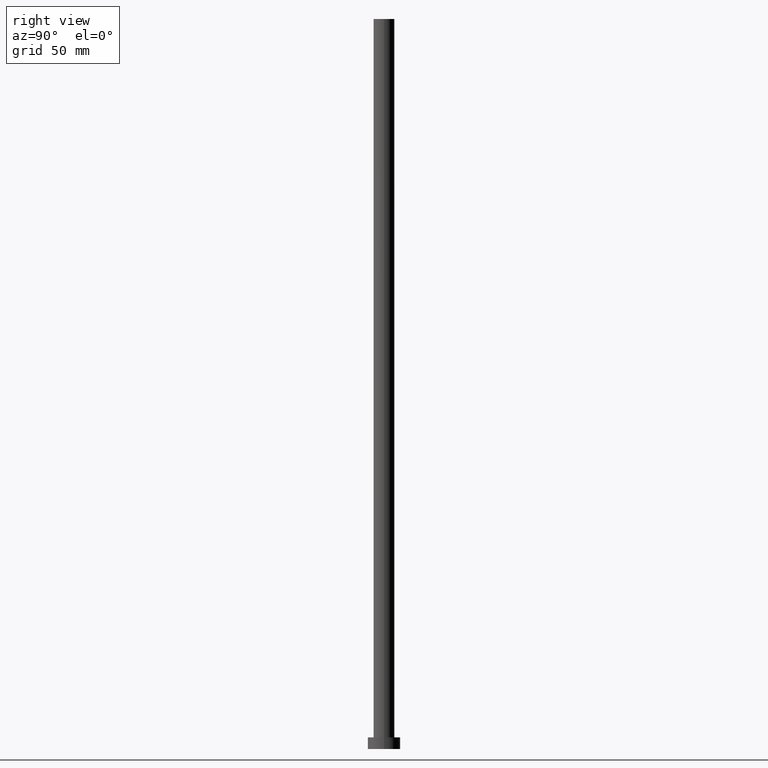
[diagram: clean part render]
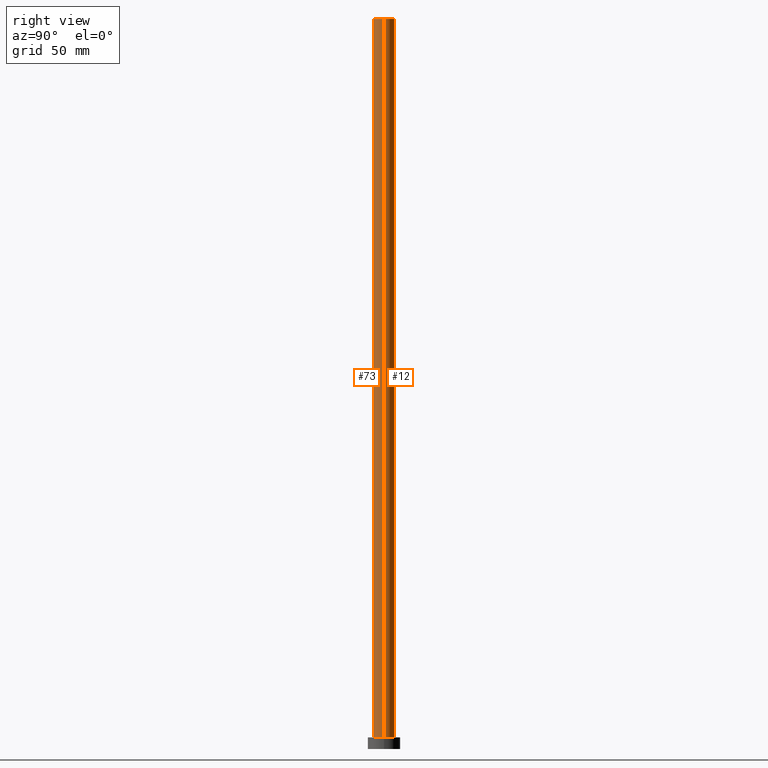
[diagram: same view with one multi-face feature highlighted, each face labeled with its STEP entity id]
A machine part, right view. The highlighted faces form ONE feature: a constant-radius fillet chain: 2 tangent blend faces with common blend radius 4.5 mm. The faces share edges in the B-rep.
Their STEP definitions:
[1] entity #12 (Cylinder):
#4 = VECTOR ( 'NONE', #164, 1000.000000000000000 ) ;
#12 = ADVANCED_FACE ( 'NONE', ( #252 ), #92, .T. ) ;
#13 = LINE ( 'NONE', #184, #204 ) ;
#14 = DIRECTION ( 'NONE',  ( -1.000000000000000000, 0.000000000000000000, 0.000000000000000000 ) ) ;
#18 = CARTESIAN_POINT ( 'NONE',  ( -4.500000000000000000, 0.000000000000000000, 5.000000000000000000 ) ) ;
#20 = ORIENTED_EDGE ( 'NONE', *, *, #53, .T. ) ;
#25 = ORIENTED_EDGE ( 'NONE', *, *, #79, .F. ) ;
#29 = EDGE_CURVE ( 'NONE', #216, #67, #105, .T. ) ;
#32 = CARTESIAN_POINT ( 'NONE',  ( -4.500000000000000000, 0.000000000000000000, 315.0000000000000000 ) ) ;
#38 = EDGE_CURVE ( 'NONE', #119, #198, #59, .T. ) ;
#49 = CARTESIAN_POINT ( 'NONE',  ( 0.000000000000000000, 0.000000000000000000, 315.0000000000000000 ) ) ;
#50 = DIRECTION ( 'NONE',  ( 1.000000000000000000, 0.000000000000000000, 0.000000000000000000 ) ) ;
#53 = EDGE_CURVE ( 'NONE', #216, #119, #13, .T. ) ;
#59 = CIRCLE ( 'NONE', #126, 4.500000000000000000 ) ;
#67 = VERTEX_POINT ( 'NONE', #32 ) ;
#69 = CARTESIAN_POINT ( 'NONE',  ( 0.000000000000000000, 0.000000000000000000, 5.000000000000000000 ) ) ;
#78 = EDGE_LOOP ( 'NONE', ( #117, #20, #149, #25 ) ) ;
#79 = EDGE_CURVE ( 'NONE', #67, #198, #209, .T. ) ;
#92 = CYLINDRICAL_SURFACE ( 'NONE', #196, 4.500000000000000000 ) ;
#105 = CIRCLE ( 'NONE', #186, 4.500000000000000000 ) ;
#112 = DIRECTION ( 'NONE',  ( 1.000000000000000000, 0.000000000000000000, 0.000000000000000000 ) ) ;
#114 = CARTESIAN_POINT ( 'NONE',  ( 4.500000000000000000, 5.510910596163088569E-16, 315.0000000000000000 ) ) ;
#117 = ORIENTED_EDGE ( 'NONE', *, *, #29, .F. ) ;
#119 = VERTEX_POINT ( 'NONE', #132 ) ;
#126 = AXIS2_PLACEMENT_3D ( 'NONE', #69, #150, #112 ) ;
#132 = CARTESIAN_POINT ( 'NONE',  ( 4.500000000000000000, 5.510910596163088569E-16, 5.000000000000000000 ) ) ;
#149 = ORIENTED_EDGE ( 'NONE', *, *, #38, .T. ) ;
#150 = DIRECTION ( 'NONE',  ( 0.000000000000000000, 0.000000000000000000, 1.000000000000000000 ) ) ;
#164 = DIRECTION ( 'NONE',  ( -0.000000000000000000, -0.000000000000000000, -1.000000000000000000 ) ) ;
#180 = DIRECTION ( 'NONE',  ( 0.000000000000000000, 0.000000000000000000, 1.000000000000000000 ) ) ;
#184 = CARTESIAN_POINT ( 'NONE',  ( 4.500000000000000000, 5.510910596163088569E-16, 315.0000000000000000 ) ) ;
#186 = AXIS2_PLACEMENT_3D ( 'NONE', #49, #180, #50 ) ;
#187 = DIRECTION ( 'NONE',  ( -0.000000000000000000, -0.000000000000000000, -1.000000000000000000 ) ) ;
#196 = AXIS2_PLACEMENT_3D ( 'NONE', #231, #226, #14 ) ;
#198 = VERTEX_POINT ( 'NONE', #18 ) ;
#204 = VECTOR ( 'NONE', #187, 1000.000000000000000 ) ;
#209 = LINE ( 'NONE', #253, #4 ) ;
#216 = VERTEX_POINT ( 'NONE', #114 ) ;
#226 = DIRECTION ( 'NONE',  ( -0.000000000000000000, -0.000000000000000000, -1.000000000000000000 ) ) ;
#231 = CARTESIAN_POINT ( 'NONE',  ( 0.000000000000000000, 0.000000000000000000, 315.0000000000000000 ) ) ;
#252 = FACE_OUTER_BOUND ( 'NONE', #78, .T. ) ;
#253 = CARTESIAN_POINT ( 'NONE',  ( -4.500000000000000000, 0.000000000000000000, 315.0000000000000000 ) ) ;
[2] entity #73 (Cylinder):
#4 = VECTOR ( 'NONE', #164, 1000.000000000000000 ) ;
#13 = LINE ( 'NONE', #184, #204 ) ;
#15 = DIRECTION ( 'NONE',  ( 0.000000000000000000, 0.000000000000000000, 1.000000000000000000 ) ) ;
#18 = CARTESIAN_POINT ( 'NONE',  ( -4.500000000000000000, 0.000000000000000000, 5.000000000000000000 ) ) ;
#19 = CIRCLE ( 'NONE', #244, 4.500000000000000000 ) ;
#22 = ORIENTED_EDGE ( 'NONE', *, *, #53, .F. ) ;
#31 = CIRCLE ( 'NONE', #103, 4.500000000000000000 ) ;
#32 = CARTESIAN_POINT ( 'NONE',  ( -4.500000000000000000, 0.000000000000000000, 315.0000000000000000 ) ) ;
#37 = CARTESIAN_POINT ( 'NONE',  ( 0.000000000000000000, 0.000000000000000000, 5.000000000000000000 ) ) ;
#46 = DIRECTION ( 'NONE',  ( -1.000000000000000000, 0.000000000000000000, 0.000000000000000000 ) ) ;
#52 = FACE_OUTER_BOUND ( 'NONE', #166, .T. ) ;
#53 = EDGE_CURVE ( 'NONE', #216, #119, #13, .T. ) ;
#67 = VERTEX_POINT ( 'NONE', #32 ) ;
#73 = ADVANCED_FACE ( 'NONE', ( #52 ), #94, .T. ) ;
#79 = EDGE_CURVE ( 'NONE', #67, #198, #209, .T. ) ;
#88 = CARTESIAN_POINT ( 'NONE',  ( 0.000000000000000000, 0.000000000000000000, 315.0000000000000000 ) ) ;
#94 = CYLINDRICAL_SURFACE ( 'NONE', #148, 4.500000000000000000 ) ;
#103 = AXIS2_PLACEMENT_3D ( 'NONE', #212, #211, #215 ) ;
#113 = ORIENTED_EDGE ( 'NONE', *, *, #165, .T. ) ;
#114 = CARTESIAN_POINT ( 'NONE',  ( 4.500000000000000000, 5.510910596163088569E-16, 315.0000000000000000 ) ) ;
#119 = VERTEX_POINT ( 'NONE', #132 ) ;
#131 = DIRECTION ( 'NONE',  ( -0.000000000000000000, -0.000000000000000000, -1.000000000000000000 ) ) ;
#132 = CARTESIAN_POINT ( 'NONE',  ( 4.500000000000000000, 5.510910596163088569E-16, 5.000000000000000000 ) ) ;
#148 = AXIS2_PLACEMENT_3D ( 'NONE', #88, #131, #46 ) ;
#153 = ORIENTED_EDGE ( 'NONE', *, *, #79, .T. ) ;
#164 = DIRECTION ( 'NONE',  ( -0.000000000000000000, -0.000000000000000000, -1.000000000000000000 ) ) ;
#165 = EDGE_CURVE ( 'NONE', #198, #119, #19, .T. ) ;
#166 = EDGE_LOOP ( 'NONE', ( #22, #227, #153, #113 ) ) ;
#168 = DIRECTION ( 'NONE',  ( 1.000000000000000000, 0.000000000000000000, 0.000000000000000000 ) ) ;
#184 = CARTESIAN_POINT ( 'NONE',  ( 4.500000000000000000, 5.510910596163088569E-16, 315.0000000000000000 ) ) ;
#187 = DIRECTION ( 'NONE',  ( -0.000000000000000000, -0.000000000000000000, -1.000000000000000000 ) ) ;
#198 = VERTEX_POINT ( 'NONE', #18 ) ;
#204 = VECTOR ( 'NONE', #187, 1000.000000000000000 ) ;
#209 = LINE ( 'NONE', #253, #4 ) ;
#211 = DIRECTION ( 'NONE',  ( 0.000000000000000000, 0.000000000000000000, 1.000000000000000000 ) ) ;
#212 = CARTESIAN_POINT ( 'NONE',  ( 0.000000000000000000, 0.000000000000000000, 315.0000000000000000 ) ) ;
#213 = EDGE_CURVE ( 'NONE', #67, #216, #31, .T. ) ;
#215 = DIRECTION ( 'NONE',  ( 1.000000000000000000, 0.000000000000000000, 0.000000000000000000 ) ) ;
#216 = VERTEX_POINT ( 'NONE', #114 ) ;
#227 = ORIENTED_EDGE ( 'NONE', *, *, #213, .F. ) ;
#244 = AXIS2_PLACEMENT_3D ( 'NONE', #37, #15, #168 ) ;
#253 = CARTESIAN_POINT ( 'NONE',  ( -4.500000000000000000, 0.000000000000000000, 315.0000000000000000 ) ) ;